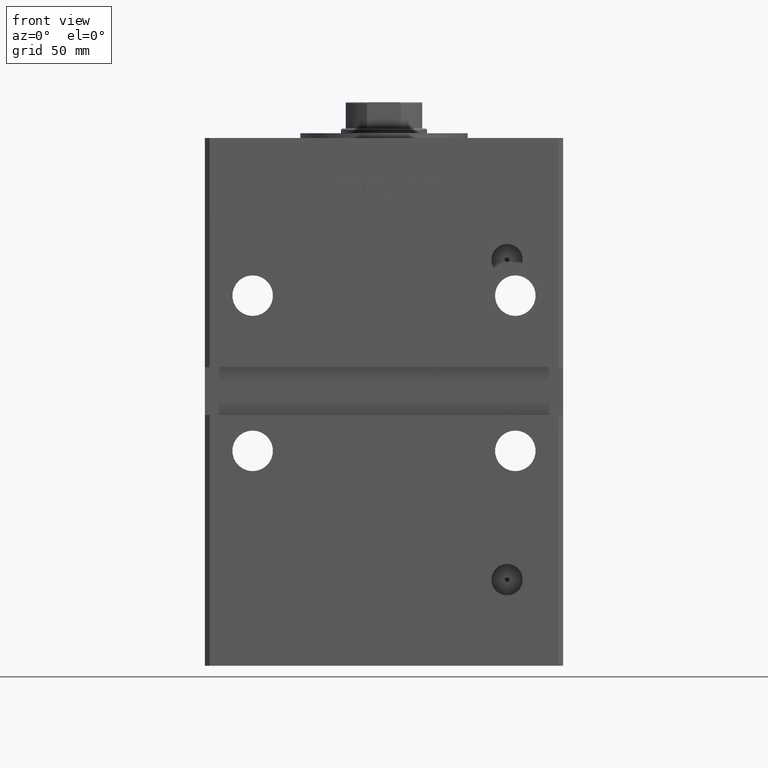
[diagram: clean part render]
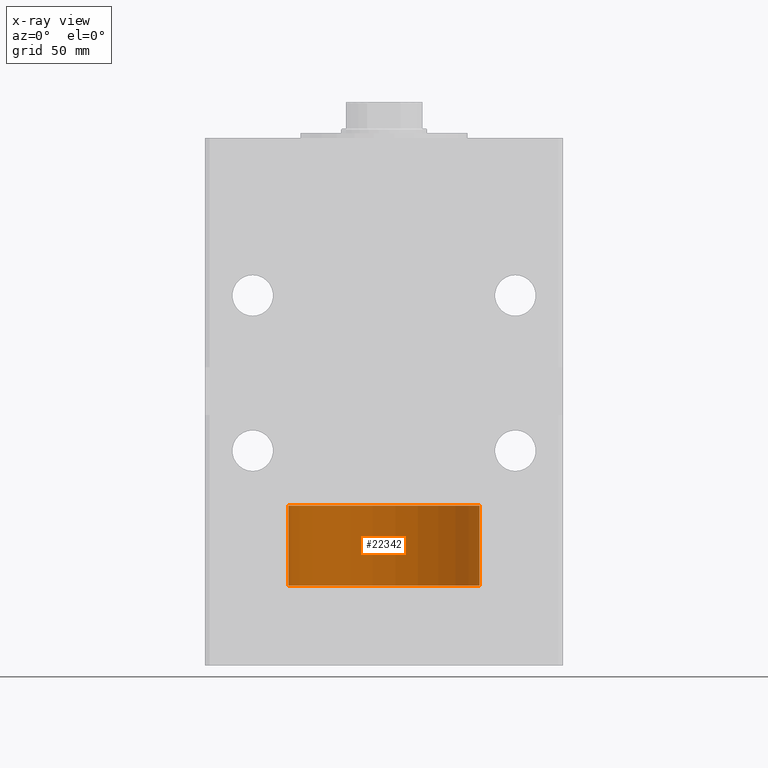
[diagram: x-ray — body ghosted, one internal face saturated and labeled with its STEP entity id]
A machine part, front view, then the same camera in x-ray: the body is ghosted and one INTERNAL B-rep face — a face not visible from any outside direction — is saturated and labeled: STEP entity #22342.
In plain terms, the highlighted cylindrical surface (partial cylindrical patch) has radius 40 mm, axis along (-0, -0, -1).
Its self-contained STEP definition (entity closure, byte-faithful):
#1027 = DIRECTION ( 'NONE',  ( 1.000000000000000000, 0.000000000000000000, 0.000000000000000000 ) ) ;
#1174 = DIRECTION ( 'NONE',  ( -0.000000000000000000, -0.000000000000000000, -1.000000000000000000 ) ) ;
#1544 = DIRECTION ( 'NONE',  ( 0.000000000000000000, 0.000000000000000000, 1.000000000000000000 ) ) ;
#3221 = DIRECTION ( 'NONE',  ( 1.000000000000000000, 0.000000000000000000, 0.000000000000000000 ) ) ;
#3656 = EDGE_LOOP ( 'NONE', ( #22903, #20649, #12881, #45859 ) ) ;
#4953 = CIRCLE ( 'NONE', #34872, 40.00000000000000000 ) ;
#6424 = DIRECTION ( 'NONE',  ( -0.000000000000000000, -0.000000000000000000, -1.000000000000000000 ) ) ;
#6975 = CARTESIAN_POINT ( 'NONE',  ( 0.000000000000000000, 0.000000000000000000, 33.50000000000000000 ) ) ;
#9295 = EDGE_CURVE ( 'NONE', #23427, #46137, #26777, .T. ) ;
#9723 = FACE_OUTER_BOUND ( 'NONE', #3656, .T. ) ;
#9946 = CARTESIAN_POINT ( 'NONE',  ( 40.00000000000000000, 4.898587196589413026E-15, 0.000000000000000000 ) ) ;
#11751 = VERTEX_POINT ( 'NONE', #34610 ) ;
#12881 = ORIENTED_EDGE ( 'NONE', *, *, #43598, .T. ) ;
#15676 = CARTESIAN_POINT ( 'NONE',  ( 40.00000000000000000, 4.898587196589413026E-15, 33.50000000000000000 ) ) ;
#17598 = VECTOR ( 'NONE', #6424, 1000.000000000000000 ) ;
#19621 = VERTEX_POINT ( 'NONE', #45642 ) ;
#20178 = LINE ( 'NONE', #36014, #27219 ) ;
#20649 = ORIENTED_EDGE ( 'NONE', *, *, #9295, .T. ) ;
#21535 = CARTESIAN_POINT ( 'NONE',  ( 0.000000000000000000, 0.000000000000000000, 33.50000000000000000 ) ) ;
#22342 = ADVANCED_FACE ( 'NONE', ( #9723 ), #25549, .T. ) ;
#22440 = CIRCLE ( 'NONE', #32721, 40.00000000000000000 ) ;
#22903 = ORIENTED_EDGE ( 'NONE', *, *, #30803, .F. ) ;
#23427 = VERTEX_POINT ( 'NONE', #15676 ) ;
#25549 = CYLINDRICAL_SURFACE ( 'NONE', #34140, 40.00000000000000000 ) ;
#26777 = LINE ( 'NONE', #43143, #17598 ) ;
#27219 = VECTOR ( 'NONE', #44597, 1000.000000000000000 ) ;
#28230 = EDGE_CURVE ( 'NONE', #19621, #11751, #20178, .T. ) ;
#30803 = EDGE_CURVE ( 'NONE', #23427, #19621, #4953, .T. ) ;
#32721 = AXIS2_PLACEMENT_3D ( 'NONE', #38000, #1544, #1027 ) ;
#34140 = AXIS2_PLACEMENT_3D ( 'NONE', #21535, #1174, #45680 ) ;
#34610 = CARTESIAN_POINT ( 'NONE',  ( -40.00000000000000000, 0.000000000000000000, 0.000000000000000000 ) ) ;
#34872 = AXIS2_PLACEMENT_3D ( 'NONE', #6975, #39668, #3221 ) ;
#36014 = CARTESIAN_POINT ( 'NONE',  ( -40.00000000000000000, 0.000000000000000000, 33.50000000000000000 ) ) ;
#38000 = CARTESIAN_POINT ( 'NONE',  ( 0.000000000000000000, 0.000000000000000000, 0.000000000000000000 ) ) ;
#39668 = DIRECTION ( 'NONE',  ( 0.000000000000000000, 0.000000000000000000, 1.000000000000000000 ) ) ;
#43143 = CARTESIAN_POINT ( 'NONE',  ( 40.00000000000000000, 4.898587196589413026E-15, 33.50000000000000000 ) ) ;
#43598 = EDGE_CURVE ( 'NONE', #46137, #11751, #22440, .T. ) ;
#44597 = DIRECTION ( 'NONE',  ( -0.000000000000000000, -0.000000000000000000, -1.000000000000000000 ) ) ;
#45642 = CARTESIAN_POINT ( 'NONE',  ( -40.00000000000000000, 0.000000000000000000, 33.50000000000000000 ) ) ;
#45680 = DIRECTION ( 'NONE',  ( -1.000000000000000000, 0.000000000000000000, 0.000000000000000000 ) ) ;
#45859 = ORIENTED_EDGE ( 'NONE', *, *, #28230, .F. ) ;
#46137 = VERTEX_POINT ( 'NONE', #9946 ) ;